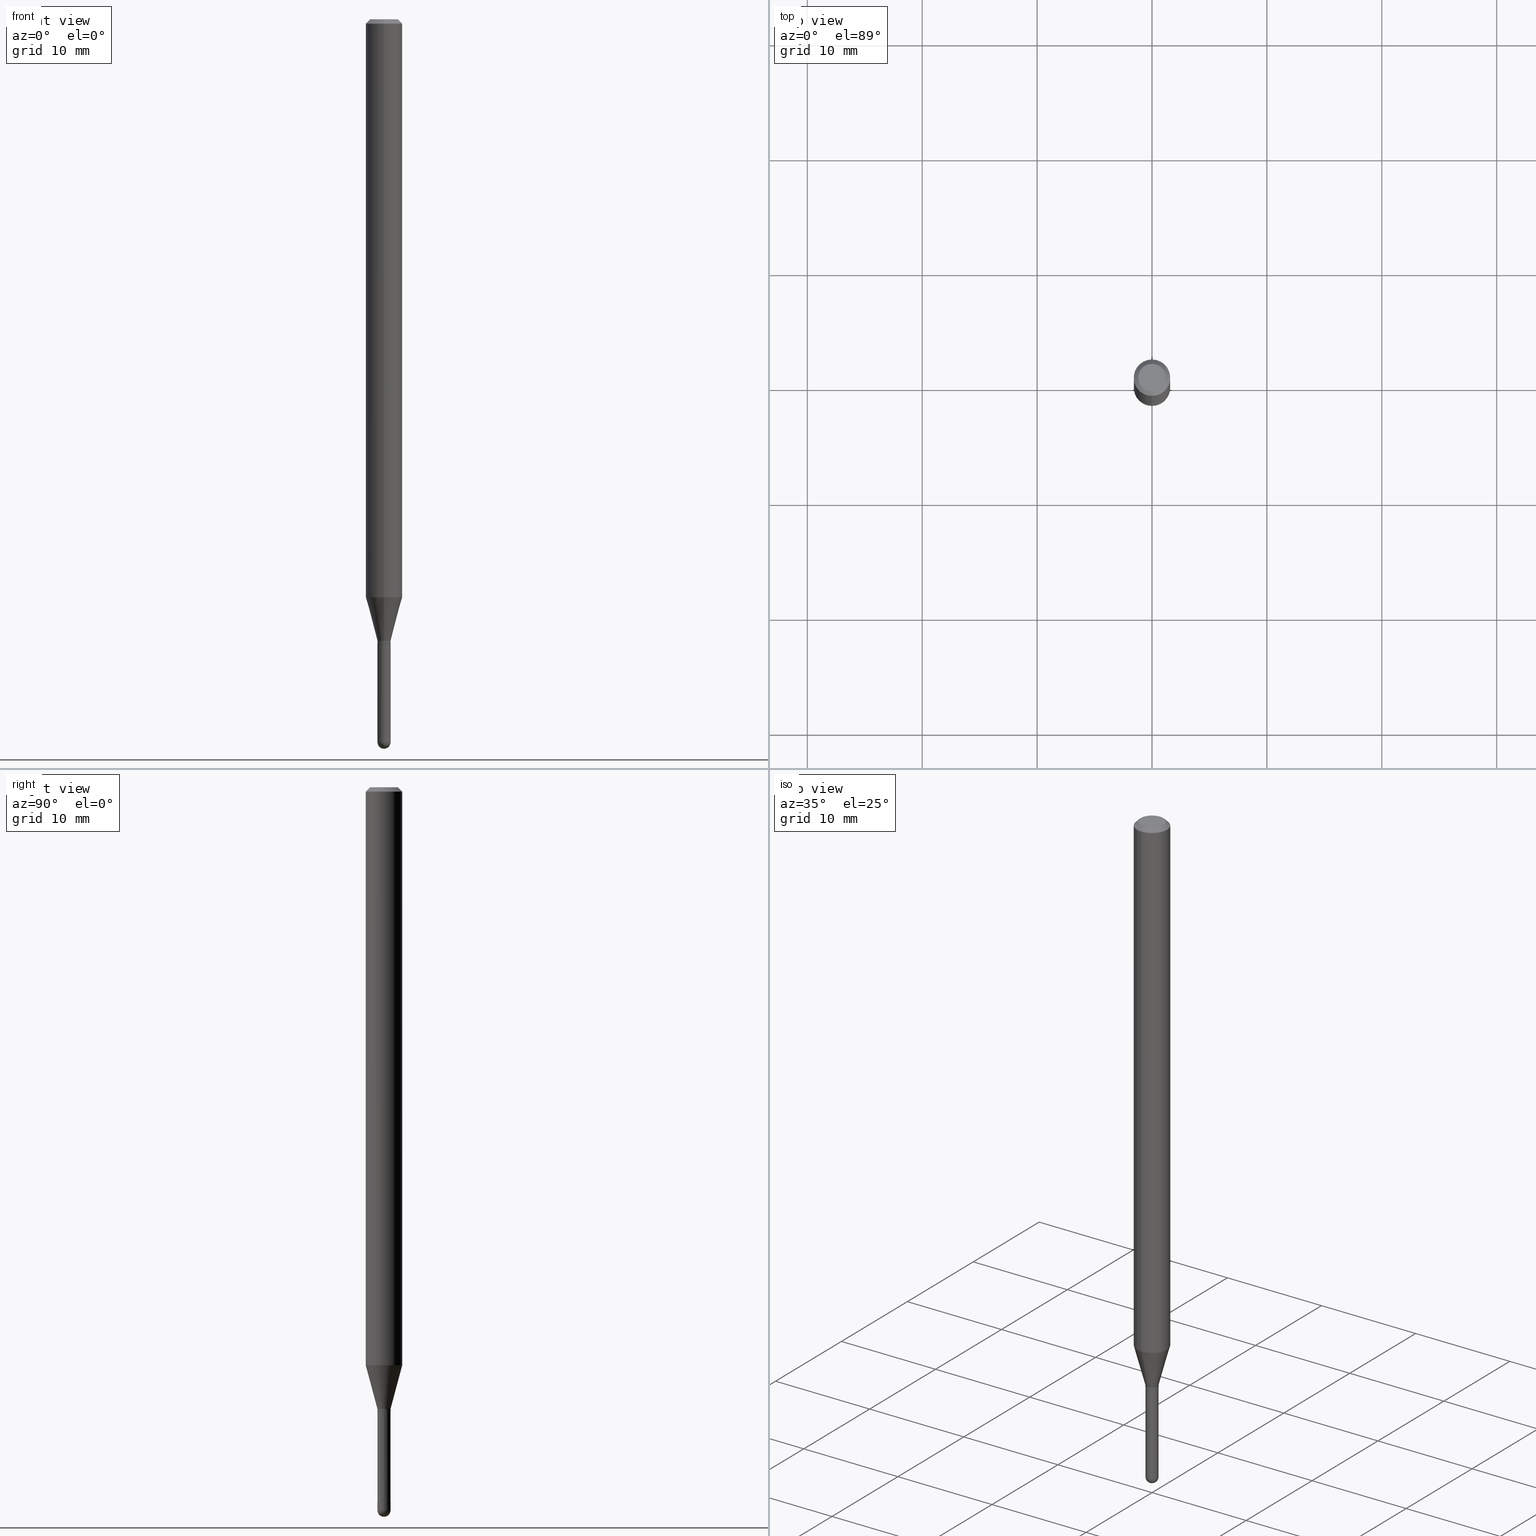
[diagram: canonical four-view strip — front | top / right | iso, engineering-drawing reading convention]
A machine part, canonical four-view strip (front | top / right | iso — engineering-drawing reading convention). The complete STEP part file that produces these views, byte-faithful:
ISO-10303-21;
HEADER;
FILE_DESCRIPTION (( 'STEP AP203' ),
    '1' );
FILE_NAME ('00987.STEP',
    '2024-03-07T19:30:09',
    ( '' ),
    ( '' ),
    'SwSTEP 2.0',
    'SolidWorks 2023',
    '' );
FILE_SCHEMA (( 'CONFIG_CONTROL_DESIGN' ));
ENDSEC;

DATA;
#1 = DIRECTION ( 'NONE',  ( 5.024295867790934632E-15, 0.7071067811869542474, 0.7071067811861405650 ) ) ;
#2 = VERTEX_POINT ( 'NONE', #376 ) ;
#3 = DIRECTION ( 'NONE',  ( -6.982962677686265922E-15, -1.000000000000000000, 3.491535548539988804E-15 ) ) ;
#4 = ADVANCED_FACE ( 'NONE', ( #181 ), #110, .T. ) ;
#5 = ORIENTED_EDGE ( 'NONE', *, *, #43, .T. ) ;
#6 = DATE_AND_TIME ( #291, #477 ) ;
#7 = AXIS2_PLACEMENT_3D ( 'NONE', #12, #18, #60 ) ;
#8 = ORIENTED_EDGE ( 'NONE', *, *, #182, .T. ) ;
#9 = DATE_AND_TIME ( #212, #171 ) ;
#10 = EDGE_CURVE ( 'NONE', #356, #237, #53, .T. ) ;
#11 = CALENDAR_DATE ( 2024, 7, 3 ) ;
#12 = CARTESIAN_POINT ( 'NONE',  ( 0.000000000000000000, 0.000000000000000000, 0.000000000000000000 ) ) ;
#13 = APPROVAL_DATE_TIME ( #483, #166 ) ;
#14 = CIRCLE ( 'NONE', #86, 0.06250000000000000000 ) ;
#15 = CIRCLE ( 'NONE', #160, 0.02249999999999999570 ) ;
#16 = DIRECTION ( 'NONE',  ( -6.982962677686265922E-15, -1.000000000000000000, 0.000000000000000000 ) ) ;
#17 = EDGE_CURVE ( 'NONE', #64, #251, #299, .T. ) ;
#18 = DIRECTION ( 'NONE',  ( -2.445468806185136597E-29, 3.491481338843145583E-15, 1.000000000000000000 ) ) ;
#19 = CARTESIAN_POINT ( 'NONE',  ( -4.364351673553434010E-16, -0.06250000000000693889, -1.980717967697244175 ) ) ;
#20 = ORIENTED_EDGE ( 'NONE', *, *, #309, .F. ) ;
#21 = CARTESIAN_POINT ( 'NONE',  ( 5.233303245236192586E-29, -7.471770065124331886E-15, -2.140000000000000124 ) ) ;
#22 = AXIS2_PLACEMENT_3D ( 'NONE', #320, #27, #36 ) ;
#23 = VECTOR ( 'NONE', #342, 39.37007874015748854 ) ;
#24 = ORIENTED_EDGE ( 'NONE', *, *, #367, .T. ) ;
#25 = ADVANCED_FACE ( 'NONE', ( #474 ), #130, .T. ) ;
#26 = PERSON ( 'UNSPECIFIED', 'UNSPECIFIED', 'UNSPECIFIED', ('UNSPECIFIED'), ('UNSPECIFIED'), ('UNSPECIFIED') ) ;
#27 = DIRECTION ( 'NONE',  ( -2.445430951756154079E-29, 3.491535548539988804E-15, 1.000000000000000000 ) ) ;
#28 = ORIENTED_EDGE ( 'NONE', *, *, #414, .F. ) ;
#29 = ORIENTED_EDGE ( 'NONE', *, *, #340, .F. ) ;
#30 = DIRECTION ( 'NONE',  ( -4.851104656540964275E-15, -0.7071067811865500152, -0.7071067811865450192 ) ) ;
#32 = EDGE_CURVE ( 'NONE', #2, #301, #336, .T. ) ;
#31 = DIRECTION ( 'NONE',  ( 2.445430951756154079E-29, -3.491535548539988804E-15, -1.000000000000000000 ) ) ;
#33 = ORIENTED_EDGE ( 'NONE', *, *, #262, .F. ) ;
#34 = CARTESIAN_POINT ( 'NONE',  ( 0.000000000000000000, 0.000000000000000000, 0.000000000000000000 ) ) ;
#35 = DIRECTION ( 'NONE',  ( -6.982962677686265922E-15, -1.000000000000000000, 4.370956789862821150E-15 ) ) ;
#36 = DIRECTION ( 'NONE',  ( -6.982962677686265922E-15, -1.000000000000000000, 0.000000000000000000 ) ) ;
#37 = ORIENTED_EDGE ( 'NONE', *, *, #132, .T. ) ;
#38 = CARTESIAN_POINT ( 'NONE',  ( 2.166100288396427880E-46, -3.092713025983241259E-32, -8.857744631231038417E-18 ) ) ;
#39 = CARTESIAN_POINT ( 'NONE',  ( 3.668146427634232888E-31, -5.237303322809986509E-17, -0.01500000000000000812 ) ) ;
#40 = DIRECTION ( 'NONE',  ( -2.445430951756154079E-29, 3.491535548539988804E-15, 1.000000000000000000 ) ) ;
#41 = DIRECTION ( 'NONE',  ( -1.000000000000000000, 6.982962677686265922E-15, -4.883557194083111780E-29 ) ) ;
#42 = CLOSED_SHELL ( 'NONE', ( #438, #232, #242, #51, #25, #381, #293, #224, #502, #432, #196, #334 ) ) ;
#43 = EDGE_CURVE ( 'NONE', #412, #111, #82, .T. ) ;
#44 = CARTESIAN_POINT ( 'NONE',  ( 6.058648967323676636E-29, -8.650145016983893338E-15, -2.477500000000000036 ) ) ;
#45 = FACE_OUTER_BOUND ( 'NONE', #386, .T. ) ;
#46 = APPLICATION_PROTOCOL_DEFINITION ( 'international standard', 'config_control_design', 1994, #369 ) ;
#47 = CARTESIAN_POINT ( 'NONE',  ( -3.773273898774340269E-16, -0.04749999999999999362, 1.569901939244184060E-16 ) ) ;
#48 = CARTESIAN_POINT ( 'NONE',  ( 0.000000000000000000, 0.000000000000000000, 0.000000000000000000 ) ) ;
#49 = DESIGN_CONTEXT ( 'detailed design', #369, 'design' ) ;
#50 =( CONVERSION_BASED_UNIT ( 'INCH', #133 ) LENGTH_UNIT ( ) NAMED_UNIT ( #73 ) );
#51 = ADVANCED_FACE ( 'NONE', ( #114 ), #254, .T. ) ;
#52 = PERSON_AND_ORGANIZATION ( #26, #454 ) ;
#53 = CIRCLE ( 'NONE', #445, 0.06250000000000000000 ) ;
#54 = APPROVAL_PERSON_ORGANIZATION ( #368, #166, #478 ) ;
#55 = APPROVAL_STATUS ( 'not_yet_approved' ) ;
#56 = CARTESIAN_POINT ( 'NONE',  ( 6.056724843173022591E-29, -8.652900472281975573E-15, -2.477500000000000036 ) ) ;
#57 = PERSON_AND_ORGANIZATION_ROLE ( 'design_owner' ) ;
#58 = MANIFOLD_SOLID_BREP ( 'Body-Move/Copy2[2]', #42 ) ;
#59 = VERTEX_POINT ( 'NONE', #434 ) ;
#60 = DIRECTION ( 'NONE',  ( 1.000000000000000000, -6.982962677686266711E-15, 4.876176775795935793E-29 ) ) ;
#61 = AXIS2_PLACEMENT_3D ( 'NONE', #276, #77, #165 ) ;
#62 = CC_DESIGN_APPROVAL ( #458, ( #484 ) ) ;
#63 = EDGE_CURVE ( 'NONE', #501, #188, #496, .T. ) ;
#64 = VERTEX_POINT ( 'NONE', #47 ) ;
#65 = ORIENTED_EDGE ( 'NONE', *, *, #346, .F. ) ;
#66 = CC_DESIGN_DATE_AND_TIME_ASSIGNMENT ( #6, #441, ( #253 ) ) ;
#67 = AXIS2_PLACEMENT_3D ( 'NONE', #195, #311, #461 ) ;
#68 = VECTOR ( 'NONE', #284, 39.37007874015748143 ) ;
#69 = VERTEX_POINT ( 'NONE', #162 ) ;
#70 = CARTESIAN_POINT ( 'NONE',  ( 5.233222236758168989E-29, -7.471886073875575741E-15, -2.139999999999999680 ) ) ;
#71 = EDGE_LOOP ( 'NONE', ( #273, #193, #455, #228 ) ) ;
#72 = DIRECTION ( 'NONE',  ( -6.982962677686265922E-15, -1.000000000000000000, 3.491535548539988804E-15 ) ) ;
#73 = DIMENSIONAL_EXPONENTS ( 1.000000000000000000, 0.000000000000000000, 0.000000000000000000, 0.000000000000000000, 0.000000000000000000, 0.000000000000000000, 0.000000000000000000 ) ;
#74 = DIRECTION ( 'NONE',  ( -2.445468806185136597E-29, 3.491481338843145583E-15, 1.000000000000000000 ) ) ;
#75 = ORIENTED_EDGE ( 'NONE', *, *, #475, .T. ) ;
#76 = CARTESIAN_POINT ( 'NONE',  ( 6.058648967323676636E-29, -8.650145016983893338E-15, -2.477500000000000036 ) ) ;
#77 = DIRECTION ( 'NONE',  ( -2.445468806185136597E-29, 3.491481338843145583E-15, 1.000000000000000000 ) ) ;
#78 = CIRCLE ( 'NONE', #109, 0.02250000000000019693 ) ;
#79 = ORIENTED_EDGE ( 'NONE', *, *, #302, .F. ) ;
#80 = PLANE ( 'NONE',  #240 ) ;
#81 = CARTESIAN_POINT ( 'NONE',  ( 6.056724843173022591E-29, -8.652900472281975573E-15, -2.477500000000000036 ) ) ;
#82 = LINE ( 'NONE', #315, #390 ) ;
#83 = EDGE_LOOP ( 'NONE', ( #24, #5, #366, #305 ) ) ;
#84 = EDGE_CURVE ( 'NONE', #237, #356, #383, .T. ) ;
#85 = CARTESIAN_POINT ( 'NONE',  ( 4.364351673553919652E-16, 0.06249999999999995143, -0.01500000000000022669 ) ) ;
#86 = AXIS2_PLACEMENT_3D ( 'NONE', #480, #283, #129 ) ;
#87 = ORIENTED_EDGE ( 'NONE', *, *, #275, .F. ) ;
#88 = LOCAL_TIME ( 14, 30, 9.000000000000000000, #481 ) ;
#89 = ADVANCED_BREP_SHAPE_REPRESENTATION ( '00987', ( #236, #58, #337 ), #279 ) ;
#90 = DIRECTION ( 'NONE',  ( -2.445430951756154079E-29, 3.491535548539988804E-15, 1.000000000000000000 ) ) ;
#91 = LINE ( 'NONE', #435, #192 ) ;
#92 = ORIENTED_EDGE ( 'NONE', *, *, #158, .T. ) ;
#93 = EDGE_CURVE ( 'NONE', #226, #69, #108, .T. ) ;
#94 = COORDINATED_UNIVERSAL_TIME_OFFSET ( 5, 0, .BEHIND. ) ;
#95 = ORIENTED_EDGE ( 'NONE', *, *, #463, .F. ) ;
#96 = AXIS2_PLACEMENT_3D ( 'NONE', #459, #74, #468 ) ;
#97 = AXIS2_PLACEMENT_3D ( 'NONE', #265, #298, #451 ) ;
#98 = FACE_OUTER_BOUND ( 'NONE', #71, .T. ) ;
#99 = DIRECTION ( 'NONE',  ( 0.000000000000000000, 0.000000000000000000, 1.000000000000000000 ) ) ;
#100 = ADVANCED_FACE ( 'NONE', ( #500 ), #151, .F. ) ;
#101 = AXIS2_PLACEMENT_3D ( 'NONE', #393, #41, #400 ) ;
#102 = LINE ( 'NONE', #225, #23 ) ;
#103 = APPROVAL_PERSON_ORGANIZATION ( #444, #177, #214 ) ;
#104 = APPROVAL_DATE_TIME ( #175, #177 ) ;
#105 = EDGE_CURVE ( 'NONE', #466, #303, #119, .T. ) ;
#106 = ORIENTED_EDGE ( 'NONE', *, *, #105, .T. ) ;
#107 = ORIENTED_EDGE ( 'NONE', *, *, #485, .F. ) ;
#108 = CIRCLE ( 'NONE', #437, 0.02249999999999999570 ) ;
#109 = AXIS2_PLACEMENT_3D ( 'NONE', #343, #377, #230 ) ;
#110 = SPHERICAL_SURFACE ( 'NONE', #101, 0.02250000000000005121 ) ;
#111 = VERTEX_POINT ( 'NONE', #504 ) ;
#112 = FACE_OUTER_BOUND ( 'NONE', #271, .T. ) ;
#113 = LINE ( 'NONE', #399, #429 ) ;
#114 = FACE_OUTER_BOUND ( 'NONE', #211, .T. ) ;
#115 = DIRECTION ( 'NONE',  ( 6.982962677686265922E-15, 1.000000000000000000, -3.483106191921935554E-15 ) ) ;
#116 = VERTEX_POINT ( 'NONE', #118 ) ;
#117 = CARTESIAN_POINT ( 'NONE',  ( 0.02249999999999999917, -7.628886725372273518E-15, -2.140000000000000124 ) ) ;
#118 = CARTESIAN_POINT ( 'NONE',  ( -1.571166602478906026E-16, -0.02250000000000774297, -2.139500000000000401 ) ) ;
#119 = CIRCLE ( 'NONE', #510, 0.02249999999999999570 ) ;
#120 = LINE ( 'NONE', #508, #137 ) ;
#121 = ORIENTED_EDGE ( 'NONE', *, *, #417, .T. ) ;
#122 = DIRECTION ( 'NONE',  ( 2.445430951756153799E-29, -3.491535548539988804E-15, -1.000000000000000000 ) ) ;
#123 = DIRECTION ( 'NONE',  ( 6.982962677686265922E-15, 1.000000000000000000, 0.000000000000000000 ) ) ;
#124 = ADVANCED_FACE ( 'NONE', ( #467 ), #246, .T. ) ;
#125 = PRODUCT ( '00987', '00987', '', ( #207 ) ) ;
#126 = DIRECTION ( 'NONE',  ( -6.982962677686266711E-15, -1.000000000000000000, 0.000000000000000000 ) ) ;
#127 = PERSON_AND_ORGANIZATION_ROLE ( 'classification_officer' ) ;
#128 = DIRECTION ( 'NONE',  ( -6.982962677686266711E-15, -1.000000000000000000, 3.491535548539988804E-15 ) ) ;
#129 = DIRECTION ( 'NONE',  ( -6.982962677686265922E-15, -1.000000000000000000, 3.483106191921935554E-15 ) ) ;
#130 = CONICAL_SURFACE ( 'NONE', #278, 0.02249999999999964875, 0.2617993877991509621 ) ;
#131 = CIRCLE ( 'NONE', #180, 0.02249999999999964875 ) ;
#132 = EDGE_CURVE ( 'NONE', #2, #412, #431, .T. ) ;
#133 = LENGTH_MEASURE_WITH_UNIT ( LENGTH_MEASURE( 0.02539999999999999897 ), #321 );
#134 = CARTESIAN_POINT ( 'NONE',  ( 6.112709953387515030E-29, -8.730081074756904482E-15, -2.500000000000000000 ) ) ;
#135 = EDGE_LOOP ( 'NONE', ( #28, #482, #505, #79 ) ) ;
#136 = PERSON_AND_ORGANIZATION_ROLE ( 'creator' ) ;
#137 = VECTOR ( 'NONE', #425, 39.37007874015748854 ) ;
#138 = PERSON_AND_ORGANIZATION_ROLE ( 'creator' ) ;
#139 = VECTOR ( 'NONE', #1, 39.37007874015748854 ) ;
#140 = DIRECTION ( 'NONE',  ( -2.445430951756154079E-29, 3.491535548539988804E-15, 1.000000000000000000 ) ) ;
#141 = PRODUCT_RELATED_PRODUCT_CATEGORY ( 'detail', '', ( #125 ) ) ;
#142 = VERTEX_POINT ( 'NONE', #159 ) ;
#143 = AXIS2_PLACEMENT_3D ( 'NONE', #355, #31, #115 ) ;
#144 = AXIS2_PLACEMENT_3D ( 'NONE', #21, #401, #314 ) ;
#145 = EDGE_CURVE ( 'NONE', #220, #111, #169, .T. ) ;
#146 = ORIENTED_EDGE ( 'NONE', *, *, #43, .F. ) ;
#147 = CARTESIAN_POINT ( 'NONE',  ( 4.843709024906387274E-29, -6.915747195846810751E-15, -1.980717967697244397 ) ) ;
#148 = ORIENTED_EDGE ( 'NONE', *, *, #32, .F. ) ;
#149 = AXIS2_PLACEMENT_3D ( 'NONE', #404, #197, #3 ) ;
#150 = CC_DESIGN_PERSON_AND_ORGANIZATION_ASSIGNMENT ( #219, #136, ( #253 ) ) ;
#151 = PLANE ( 'NONE',  #67 ) ;
#152 = ORIENTED_EDGE ( 'NONE', *, *, #408, .T. ) ;
#153 = CARTESIAN_POINT ( 'NONE',  ( 5.233222236758170110E-29, -7.471886073875577319E-15, -2.140000000000000124 ) ) ;
#154 = CARTESIAN_POINT ( 'NONE',  ( 5.233222236758168989E-29, -7.471886073875575741E-15, -2.139999999999999680 ) ) ;
#155 = DIRECTION ( 'NONE',  ( 2.445430951756154079E-29, -3.491535548539988804E-15, -1.000000000000000000 ) ) ;
#156 = EDGE_LOOP ( 'NONE', ( #29, #324, #394, #351 ) ) ;
#157 = FACE_OUTER_BOUND ( 'NONE', #204, .T. ) ;
#158 = EDGE_CURVE ( 'NONE', #251, #64, #199, .T. ) ;
#159 = CARTESIAN_POINT ( 'NONE',  ( 4.440892098501114269E-16, 0.06249999999999995143, -0.01500000000000022669 ) ) ;
#160 = AXIS2_PLACEMENT_3D ( 'NONE', #392, #357, #503 ) ;
#161 = FACE_OUTER_BOUND ( 'NONE', #387, .T. ) ;
#162 = CARTESIAN_POINT ( 'NONE',  ( -1.598721155459620894E-16, -0.02250000000000867278, -2.477500000000000036 ) ) ;
#163 = ORIENTED_EDGE ( 'NONE', *, *, #424, .T. ) ;
#164 = DIRECTION ( 'NONE',  ( -2.445430951756154079E-29, 3.491535548539988804E-15, 1.000000000000000000 ) ) ;
#165 = DIRECTION ( 'NONE',  ( 1.000000000000000000, -6.982962677686269077E-15, 0.000000000000000000 ) ) ;
#166 = APPROVAL ( #333, 'UNSPECIFIED' ) ;
#167 = APPROVAL_ROLE ( '' ) ;
#168 = DIRECTION ( 'NONE',  ( -2.445430951756154079E-29, 3.491535548539988804E-15, 1.000000000000000000 ) ) ;
#169 = CIRCLE ( 'NONE', #362, 0.02249999999999964875 ) ;
#170 = VERTEX_POINT ( 'NONE', #134 ) ;
#171 = LOCAL_TIME ( 14, 30, 9.000000000000000000, #288 ) ;
#172 =( NAMED_UNIT ( * ) PLANE_ANGLE_UNIT ( ) SI_UNIT ( $, .RADIAN. ) );
#173 = ORIENTED_EDGE ( 'NONE', *, *, #266, .T. ) ;
#174 = APPLICATION_CONTEXT ( 'configuration controlled 3d designs of mechanical parts and assemblies' ) ;
#175 = DATE_AND_TIME ( #11, #185 ) ;
#176 = CARTESIAN_POINT ( 'NONE',  ( 5.233222236758168989E-29, -7.471886073875575741E-15, -2.139999999999999680 ) ) ;
#177 = APPROVAL ( #55, 'UNSPECIFIED' ) ;
#178 = AXIS2_PLACEMENT_3D ( 'NONE', #176, #140, #16 ) ;
#179 = DIRECTION ( 'NONE',  ( 1.000000000000000000, -6.982962677686265922E-15, 4.883557194083112340E-29 ) ) ;
#180 = AXIS2_PLACEMENT_3D ( 'NONE', #227, #487, #382 ) ;
#181 = FACE_OUTER_BOUND ( 'NONE', #443, .T. ) ;
#182 = EDGE_CURVE ( 'NONE', #116, #220, #442, .T. ) ;
#183 = EDGE_LOOP ( 'NONE', ( #95, #260, #509, #344 ) ) ;
#184 = VECTOR ( 'NONE', #330, 39.37007874015748143 ) ;
#185 = LOCAL_TIME ( 14, 30, 9.000000000000000000, #374 ) ;
#186 = EDGE_LOOP ( 'NONE', ( #416, #460, #268, #20 ) ) ;
#187 = CARTESIAN_POINT ( 'NONE',  ( 4.440892098501108353E-16, 0.06249999999999306804, -1.980717967697244841 ) ) ;
#188 = VERTEX_POINT ( 'NONE', #446 ) ;
#189 = CC_DESIGN_PERSON_AND_ORGANIZATION_ASSIGNMENT ( #335, #57, ( #125 ) ) ;
#190 = FACE_OUTER_BOUND ( 'NONE', #135, .T. ) ;
#191 = DIRECTION ( 'NONE',  ( -2.445468806185136597E-29, 3.491481338843145583E-15, 1.000000000000000000 ) ) ;
#192 = VECTOR ( 'NONE', #405, 39.37007874015748143 ) ;
#193 = ORIENTED_EDGE ( 'NONE', *, *, #32, .T. ) ;
#194 = DIRECTION ( 'NONE',  ( -1.000000000000000000, 7.105427357601001070E-15, -4.926315508542082329E-29 ) ) ;
#195 = CARTESIAN_POINT ( 'NONE',  ( 1.571166602479933025E-16, 0.02249999999999252945, -2.140000000000000124 ) ) ;
#196 = ADVANCED_FACE ( 'NONE', ( #98 ), #239, .T. ) ;
#197 = DIRECTION ( 'NONE',  ( -2.445430951756154079E-29, 3.491535548539988804E-15, 1.000000000000000000 ) ) ;
#198 = LINE ( 'NONE', #465, #488 ) ;
#199 = CIRCLE ( 'NONE', #453, 0.04749999999999999362 ) ;
#200 = DIRECTION ( 'NONE',  ( -2.445430951756154079E-29, 3.491535548539988804E-15, 1.000000000000000000 ) ) ;
#201 = SECURITY_CLASSIFICATION ( '', '', #325 ) ;
#202 = ORIENTED_EDGE ( 'NONE', *, *, #323, .F. ) ;
#203 = DIRECTION ( 'NONE',  ( -2.445468806185136877E-29, 3.491481338843145188E-15, 1.000000000000000000 ) ) ;
#204 = EDGE_LOOP ( 'NONE', ( #92, #436 ) ) ;
#205 = APPROVAL_STATUS ( 'not_yet_approved' ) ;
#206 = DIRECTION ( 'NONE',  ( -2.445468806185136597E-29, 3.491481338843145583E-15, 1.000000000000000000 ) ) ;
#207 = MECHANICAL_CONTEXT ( 'NONE', #174, 'mechanical' ) ;
#208 = DIRECTION ( 'NONE',  ( -6.982962677686265133E-15, -1.000000000000000000, 3.491535548539988410E-15 ) ) ;
#209 = CONICAL_SURFACE ( 'NONE', #259, 0.06250000000000000000, 0.7853981633974483900 ) ;
#210 = VECTOR ( 'NONE', #30, 39.37007874015748143 ) ;
#211 = EDGE_LOOP ( 'NONE', ( #327, #456, #218, #202 ) ) ;
#212 = CALENDAR_DATE ( 2024, 7, 3 ) ;
#213 = DIRECTION ( 'NONE',  ( 4.937700262164548042E-15, 0.7071067811865451302, -0.7071067811865499042 ) ) ;
#214 = APPROVAL_ROLE ( '' ) ;
#215 = CC_DESIGN_PERSON_AND_ORGANIZATION_ASSIGNMENT ( #263, #138, ( #484 ) ) ;
#216 = CARTESIAN_POINT ( 'NONE',  ( -1.571166602478864611E-16, -0.02250000000000708378, -2.129999999999999893 ) ) ;
#217 = DIRECTION ( 'NONE',  ( -2.445468806185136877E-29, 3.491481338843145188E-15, 1.000000000000000000 ) ) ;
#218 = ORIENTED_EDGE ( 'NONE', *, *, #452, .F. ) ;
#219 = PERSON_AND_ORGANIZATION ( #26, #454 ) ;
#220 = VERTEX_POINT ( 'NONE', #216 ) ;
#221 = AXIS2_PLACEMENT_3D ( 'NONE', #38, #407, #128 ) ;
#222 = AXIS2_PLACEMENT_3D ( 'NONE', #238, #164, #310 ) ;
#223 = EDGE_LOOP ( 'NONE', ( #339, #380, #449, #297, #106 ) ) ;
#224 = ADVANCED_FACE ( 'NONE', ( #397 ), #402, .T. ) ;
#225 = CARTESIAN_POINT ( 'NONE',  ( -1.536251789090455247E-16, -0.02200000000000746844, -2.139999999999999680 ) ) ;
#226 = VERTEX_POINT ( 'NONE', #312 ) ;
#227 = CARTESIAN_POINT ( 'NONE',  ( 5.208767927240607101E-29, -7.436970718390176776E-15, -2.129999999999999893 ) ) ;
#228 = ORIENTED_EDGE ( 'NONE', *, *, #424, .F. ) ;
#229 = AXIS2_PLACEMENT_3D ( 'NONE', #154, #427, #241 ) ;
#230 = DIRECTION ( 'NONE',  ( -6.982962677686265133E-15, -1.000000000000000000, 0.000000000000000000 ) ) ;
#231 = CC_DESIGN_APPROVAL ( #166, ( #253 ) ) ;
#232 = ADVANCED_FACE ( 'NONE', ( #428 ), #248, .T. ) ;
#233 = CYLINDRICAL_SURFACE ( 'NONE', #96, 0.02249999999999999917 ) ;
#234 = ORIENTED_EDGE ( 'NONE', *, *, #105, .F. ) ;
#235 = CYLINDRICAL_SURFACE ( 'NONE', #511, 0.02249999999999992284 ) ;
#236 = MANIFOLD_SOLID_BREP ( 'Body-Move/Copy2[1]', #329 ) ;
#237 = VERTEX_POINT ( 'NONE', #187 ) ;
#238 = CARTESIAN_POINT ( 'NONE',  ( 5.231999521282292352E-29, -7.470140306101307686E-15, -2.139500000000000401 ) ) ;
#239 = CONICAL_SURFACE ( 'NONE', #178, 0.02199999999999999872, 0.7853981633980202659 ) ;
#240 = AXIS2_PLACEMENT_3D ( 'NONE', #153, #272, #72 ) ;
#241 = DIRECTION ( 'NONE',  ( -6.982962677686265922E-15, -1.000000000000000000, 0.000000000000000000 ) ) ;
#242 = ADVANCED_FACE ( 'NONE', ( #494 ), #209, .T. ) ;
#243 = FACE_OUTER_BOUND ( 'NONE', #83, .T. ) ;
#244 = DIRECTION ( 'NONE',  ( -1.000000000000000000, 6.982962677686265922E-15, -4.883557194083111780E-29 ) ) ;
#245 = LINE ( 'NONE', #469, #68 ) ;
#246 = SPHERICAL_SURFACE ( 'NONE', #411, 0.02250000000000005121 ) ;
#247 = ORIENTED_EDGE ( 'NONE', *, *, #398, .F. ) ;
#248 = CONICAL_SURFACE ( 'NONE', #22, 0.02199999999999999872, 0.7853981633980202659 ) ;
#249 = DIRECTION ( 'NONE',  ( -2.445430951756154079E-29, 3.491535548539988804E-15, 1.000000000000000000 ) ) ;
#250 = CIRCLE ( 'NONE', #353, 0.06250000000000000000 ) ;
#251 = VERTEX_POINT ( 'NONE', #316 ) ;
#252 = CALENDAR_DATE ( 2024, 7, 3 ) ;
#253 = PRODUCT_DEFINITION ( 'UNKNOWN', '', #484, #49 ) ;
#254 = CYLINDRICAL_SURFACE ( 'NONE', #149, 0.06250000000000000000 ) ;
#255 = CYLINDRICAL_SURFACE ( 'NONE', #345, 0.02249999999999992284 ) ;
#256 = DIRECTION ( 'NONE',  ( -2.445430951756154079E-29, 3.491535548539988804E-15, 1.000000000000000000 ) ) ;
#257 = CALENDAR_DATE ( 2024, 7, 3 ) ;
#258 = CARTESIAN_POINT ( 'NONE',  ( -1.571166602479404241E-16, -0.02249999999999992284, 7.855954984214947100E-17 ) ) ;
#259 = AXIS2_PLACEMENT_3D ( 'NONE', #39, #155, #307 ) ;
#260 = ORIENTED_EDGE ( 'NONE', *, *, #158, .F. ) ;
#261 = AXIS2_PLACEMENT_3D ( 'NONE', #512, #194, #354 ) ;
#262 = EDGE_CURVE ( 'NONE', #111, #237, #198, .T. ) ;
#263 = PERSON_AND_ORGANIZATION ( #26, #454 ) ;
#264 = DIRECTION ( 'NONE',  ( 1.000000000000000000, 0.000000000000000000, 0.000000000000000000 ) ) ;
#265 = CARTESIAN_POINT ( 'NONE',  ( 5.208767927240607101E-29, -7.436970718390176776E-15, -2.129999999999999893 ) ) ;
#266 = EDGE_CURVE ( 'NONE', #220, #356, #120, .T. ) ;
#267 = CIRCLE ( 'NONE', #420, 0.02250000000000005121 ) ;
#268 = ORIENTED_EDGE ( 'NONE', *, *, #452, .T. ) ;
#269 = DIRECTION ( 'NONE',  ( -6.982962677686265922E-15, -1.000000000000000000, 3.491535548539988804E-15 ) ) ;
#270 = CC_DESIGN_DATE_AND_TIME_ASSIGNMENT ( #9, #413, ( #201 ) ) ;
#271 = EDGE_LOOP ( 'NONE', ( #87, #148 ) ) ;
#272 = DIRECTION ( 'NONE',  ( -2.445430951756153799E-29, 3.491535548539988804E-15, 1.000000000000000000 ) ) ;
#273 = ORIENTED_EDGE ( 'NONE', *, *, #132, .F. ) ;
#274 = DIRECTION ( 'NONE',  ( -6.982962677686265922E-15, -1.000000000000000000, 3.483106191921935554E-15 ) ) ;
#275 = EDGE_CURVE ( 'NONE', #301, #2, #457, .T. ) ;
#276 = CARTESIAN_POINT ( 'NONE',  ( 5.233303245236192586E-29, -7.471770065124331886E-15, -2.140000000000000124 ) ) ;
#277 = DIRECTION ( 'NONE',  ( 1.000000000000000000, -6.982962677686269866E-15, 0.000000000000000000 ) ) ;
#278 = AXIS2_PLACEMENT_3D ( 'NONE', #439, #433, #326 ) ;
#279 =( GEOMETRIC_REPRESENTATION_CONTEXT ( 3 ) GLOBAL_UNCERTAINTY_ASSIGNED_CONTEXT ( ( #286 ) ) GLOBAL_UNIT_ASSIGNED_CONTEXT ( ( #50, #172, #448 ) ) REPRESENTATION_CONTEXT ( 'NONE', 'WORKASPACE' ) );
#280 = DIRECTION ( 'NONE',  ( -2.445430951756154079E-29, 3.491535548539988804E-15, 1.000000000000000000 ) ) ;
#281 = DIRECTION ( 'NONE',  ( 6.982962677686265922E-15, 1.000000000000000000, -3.491535548539988804E-15 ) ) ;
#282 = DIRECTION ( 'NONE',  ( -6.982962677686265922E-15, -1.000000000000000000, 4.370956789862821150E-15 ) ) ;
#283 = DIRECTION ( 'NONE',  ( -2.445430951756154079E-29, 3.491535548539988804E-15, 1.000000000000000000 ) ) ;
#284 = DIRECTION ( 'NONE',  ( -2.445430951756154079E-29, 3.491535548539988804E-15, 1.000000000000000000 ) ) ;
#285 = CARTESIAN_POINT ( 'NONE',  ( 1.571166602480017334E-16, 0.02249999999999136718, -2.477500000000000036 ) ) ;
#286 = UNCERTAINTY_MEASURE_WITH_UNIT (LENGTH_MEASURE( 1.000000000000000082E-05 ), #50, 'distance_accuracy_value', 'NONE');
#287 = ADVANCED_FACE ( 'NONE', ( #161 ), #233, .T. ) ;
#288 = COORDINATED_UNIVERSAL_TIME_OFFSET ( 5, 0, .BEHIND. ) ;
#289 = CC_DESIGN_SECURITY_CLASSIFICATION ( #201, ( #484 ) ) ;
#290 = APPLICATION_PROTOCOL_DEFINITION ( 'international standard', 'config_control_design', 1994, #174 ) ;
#291 = CALENDAR_DATE ( 2024, 7, 3 ) ;
#292 = CARTESIAN_POINT ( 'NONE',  ( 2.166100288396427880E-46, -3.092713025983241259E-32, -8.857744631231038417E-18 ) ) ;
#293 = ADVANCED_FACE ( 'NONE', ( #190 ), #462, .T. ) ;
#294 = ORIENTED_EDGE ( 'NONE', *, *, #10, .F. ) ;
#295 = PERSON_AND_ORGANIZATION_ROLE ( 'design_supplier' ) ;
#296 = CIRCLE ( 'NONE', #144, 0.02249999999999999917 ) ;
#297 = ORIENTED_EDGE ( 'NONE', *, *, #417, .F. ) ;
#298 = DIRECTION ( 'NONE',  ( -2.445430951756154079E-29, 3.491535548539988804E-15, 1.000000000000000000 ) ) ;
#299 = CIRCLE ( 'NONE', #221, 0.04749999999999999362 ) ;
#300 = CC_DESIGN_APPROVAL ( #177, ( #201 ) ) ;
#301 = VERTEX_POINT ( 'NONE', #471 ) ;
#302 = EDGE_CURVE ( 'NONE', #142, #59, #14, .T. ) ;
#303 = VERTEX_POINT ( 'NONE', #285 ) ;
#304 = PRODUCT_DEFINITION_SHAPE ( 'NONE', 'NONE',  #253 ) ;
#305 = ORIENTED_EDGE ( 'NONE', *, *, #182, .F. ) ;
#306 = AXIS2_PLACEMENT_3D ( 'NONE', #497, #280, #269 ) ;
#307 = DIRECTION ( 'NONE',  ( 6.982962677686265922E-15, 1.000000000000000000, -3.483106191921935554E-15 ) ) ;
#308 = EDGE_LOOP ( 'NONE', ( #406, #152 ) ) ;
#309 = EDGE_CURVE ( 'NONE', #251, #142, #440, .T. ) ;
#310 = DIRECTION ( 'NONE',  ( -6.982962677686265133E-15, -1.000000000000000000, 0.000000000000000000 ) ) ;
#311 = DIRECTION ( 'NONE',  ( 2.438088387897960049E-29, -3.491481338843145188E-15, -1.000000000000000000 ) ) ;
#312 = CARTESIAN_POINT ( 'NONE',  ( -0.02249999999999999570, -7.901085425508090322E-15, -2.477500000000000036 ) ) ;
#313 = EDGE_LOOP ( 'NONE', ( #492, #486, #294, #498 ) ) ;
#314 = DIRECTION ( 'NONE',  ( 1.000000000000000000, -6.982962677686269077E-15, 0.000000000000000000 ) ) ;
#315 = CARTESIAN_POINT ( 'NONE',  ( 1.598721155460219689E-16, 0.02249999999999992284, -7.855954984214947100E-17 ) ) ;
#316 = CARTESIAN_POINT ( 'NONE',  ( 3.840629472727447874E-16, 0.04749999999999999362, -1.747056831868805136E-16 ) ) ;
#317 = CARTESIAN_POINT ( 'NONE',  ( 3.316907271900976096E-16, 0.04749999999999999362, -1.702768108712649806E-16 ) ) ;
#318 = AXIS2_PLACEMENT_3D ( 'NONE', #70, #385, #348 ) ;
#319 = CARTESIAN_POINT ( 'NONE',  ( 4.843709024906387274E-29, -6.915747195846810751E-15, -1.980717967697244397 ) ) ;
#320 = CARTESIAN_POINT ( 'NONE',  ( 5.233222236758168989E-29, -7.471886073875575741E-15, -2.139999999999999680 ) ) ;
#321 =( LENGTH_UNIT ( ) NAMED_UNIT ( * ) SI_UNIT ( $, .METRE. ) );
#322 = CARTESIAN_POINT ( 'NONE',  ( 5.208767927240607101E-29, -7.436970718390176776E-15, -2.129999999999999893 ) ) ;
#323 = EDGE_CURVE ( 'NONE', #356, #59, #91, .T. ) ;
#324 = ORIENTED_EDGE ( 'NONE', *, *, #485, .T. ) ;
#325 = SECURITY_CLASSIFICATION_LEVEL ( 'unclassified' ) ;
#326 = DIRECTION ( 'NONE',  ( -6.982962677686266711E-15, -1.000000000000000000, 0.000000000000000000 ) ) ;
#327 = ORIENTED_EDGE ( 'NONE', *, *, #10, .T. ) ;
#328 = PERSON_AND_ORGANIZATION ( #26, #454 ) ;
#329 = CLOSED_SHELL ( 'NONE', ( #350, #124, #100, #4, #287 ) ) ;
#330 = DIRECTION ( 'NONE',  ( -2.445430951756154079E-29, 3.491535548539988804E-15, 1.000000000000000000 ) ) ;
#331 = CIRCLE ( 'NONE', #222, 0.02250000000000019693 ) ;
#332 = EDGE_LOOP ( 'NONE', ( #349, #37, #372, #347 ) ) ;
#333 = APPROVAL_STATUS ( 'not_yet_approved' ) ;
#334 = ADVANCED_FACE ( 'NONE', ( #45 ), #255, .T. ) ;
#335 = PERSON_AND_ORGANIZATION ( #26, #454 ) ;
#336 = CIRCLE ( 'NONE', #229, 0.02199999999999999872 ) ;
#337 = AXIS2_PLACEMENT_3D ( 'NONE', #476, #99, #264 ) ;
#338 = DIRECTION ( 'NONE',  ( 6.982962677686265922E-15, 1.000000000000000000, 0.000000000000000000 ) ) ;
#339 = ORIENTED_EDGE ( 'NONE', *, *, #493, .T. ) ;
#340 = EDGE_CURVE ( 'NONE', #170, #303, #267, .T. ) ;
#341 = ORIENTED_EDGE ( 'NONE', *, *, #93, .T. ) ;
#342 = DIRECTION ( 'NONE',  ( -4.937700262167370586E-15, -0.7071067811869493624, 0.7071067811861454500 ) ) ;
#343 = CARTESIAN_POINT ( 'NONE',  ( 5.231999521282292352E-29, -7.470140306101307686E-15, -2.139500000000000401 ) ) ;
#344 = ORIENTED_EDGE ( 'NONE', *, *, #302, .T. ) ;
#345 = AXIS2_PLACEMENT_3D ( 'NONE', #48, #256, #208 ) ;
#346 = EDGE_CURVE ( 'NONE', #226, #188, #378, .T. ) ;
#347 = ORIENTED_EDGE ( 'NONE', *, *, #389, .F. ) ;
#348 = DIRECTION ( 'NONE',  ( -6.982962677686265922E-15, -1.000000000000000000, 0.000000000000000000 ) ) ;
#349 = ORIENTED_EDGE ( 'NONE', *, *, #275, .T. ) ;
#350 = ADVANCED_FACE ( 'NONE', ( #375 ), #418, .T. ) ;
#351 = ORIENTED_EDGE ( 'NONE', *, *, #493, .F. ) ;
#352 = VECTOR ( 'NONE', #213, 39.37007874015748143 ) ;
#353 = AXIS2_PLACEMENT_3D ( 'NONE', #506, #359, #274 ) ;
#354 = DIRECTION ( 'NONE',  ( -7.105427357600999492E-15, -1.000000000000000000, 0.000000000000000000 ) ) ;
#355 = CARTESIAN_POINT ( 'NONE',  ( 3.668146427634232888E-31, -5.237303322809986509E-17, -0.01500000000000000812 ) ) ;
#356 = VERTEX_POINT ( 'NONE', #19 ) ;
#357 = DIRECTION ( 'NONE',  ( -2.445468806185136597E-29, 3.491481338843145583E-15, 1.000000000000000000 ) ) ;
#358 = CARTESIAN_POINT ( 'NONE',  ( 6.058648967323676636E-29, -8.650145016983893338E-15, -2.477500000000000036 ) ) ;
#359 = DIRECTION ( 'NONE',  ( -2.445430951756154079E-29, 3.491535548539988804E-15, 1.000000000000000000 ) ) ;
#360 = DIRECTION ( 'NONE',  ( 1.839019923739605048E-15, 0.2588190451025256245, 0.9659258262890669799 ) ) ;
#361 = CARTESIAN_POINT ( 'NONE',  ( -4.287811248607203282E-16, -0.06250000000000005551, -0.01499999999999979128 ) ) ;
#362 = AXIS2_PLACEMENT_3D ( 'NONE', #322, #470, #126 ) ;
#363 = APPROVAL_PERSON_ORGANIZATION ( #328, #458, #167 ) ;
#364 = CC_DESIGN_PERSON_AND_ORGANIZATION_ASSIGNMENT ( #473, #127, ( #201 ) ) ;
#365 = DIRECTION ( 'NONE',  ( 1.000000000000000000, -6.982962677686269866E-15, 0.000000000000000000 ) ) ;
#366 = ORIENTED_EDGE ( 'NONE', *, *, #145, .F. ) ;
#367 = EDGE_CURVE ( 'NONE', #116, #412, #78, .T. ) ;
#368 = PERSON_AND_ORGANIZATION ( #26, #454 ) ;
#369 = APPLICATION_CONTEXT ( 'configuration controlled 3d designs of mechanical parts and assemblies' ) ;
#370 = AXIS2_PLACEMENT_3D ( 'NONE', #319, #200, #35 ) ;
#371 = AXIS2_PLACEMENT_3D ( 'NONE', #317, #122, #281 ) ;
#372 = ORIENTED_EDGE ( 'NONE', *, *, #367, .F. ) ;
#373 = DATE_AND_TIME ( #257, #422 ) ;
#374 = COORDINATED_UNIVERSAL_TIME_OFFSET ( 5, 0, .BEHIND. ) ;
#375 = FACE_OUTER_BOUND ( 'NONE', #223, .T. ) ;
#376 = CARTESIAN_POINT ( 'NONE',  ( 1.580957587066752608E-16, 0.02199999999999252900, -2.139999999999999680 ) ) ;
#377 = DIRECTION ( 'NONE',  ( -2.445430951756154079E-29, 3.491535548539988804E-15, 1.000000000000000000 ) ) ;
#378 = LINE ( 'NONE', #491, #391 ) ;
#379 = SHAPE_DEFINITION_REPRESENTATION ( #304, #89 ) ;
#380 = ORIENTED_EDGE ( 'NONE', *, *, #346, .T. ) ;
#381 = ADVANCED_FACE ( 'NONE', ( #423 ), #403, .T. ) ;
#382 = DIRECTION ( 'NONE',  ( -6.982962677686266711E-15, -1.000000000000000000, 0.000000000000000000 ) ) ;
#383 = CIRCLE ( 'NONE', #370, 0.06250000000000000000 ) ;
#384 = AXIS2_PLACEMENT_3D ( 'NONE', #76, #191, #277 ) ;
#385 = DIRECTION ( 'NONE',  ( -2.445430951756154079E-29, 3.491535548539988804E-15, 1.000000000000000000 ) ) ;
#386 = EDGE_LOOP ( 'NONE', ( #146, #163, #8, #247 ) ) ;
#387 = EDGE_LOOP ( 'NONE', ( #65, #341, #75, #121, #490 ) ) ;
#388 = DIRECTION ( 'NONE',  ( -6.982962677686265133E-15, -1.000000000000000000, 3.491535548539988410E-15 ) ) ;
#389 = EDGE_CURVE ( 'NONE', #301, #116, #102, .T. ) ;
#390 = VECTOR ( 'NONE', #90, 39.37007874015748143 ) ;
#391 = VECTOR ( 'NONE', #217, 39.37007874015748143 ) ;
#392 = CARTESIAN_POINT ( 'NONE',  ( 6.058648967323676636E-29, -8.650145016983893338E-15, -2.477500000000000036 ) ) ;
#393 = CARTESIAN_POINT ( 'NONE',  ( 6.056724843173022591E-29, -8.652900472281975573E-15, -2.477500000000000036 ) ) ;
#394 = ORIENTED_EDGE ( 'NONE', *, *, #93, .F. ) ;
#395 = LINE ( 'NONE', #361, #210 ) ;
#396 = DIRECTION ( 'NONE',  ( -2.445468806185136597E-29, 3.491481338843145583E-15, 1.000000000000000000 ) ) ;
#397 = FACE_OUTER_BOUND ( 'NONE', #183, .T. ) ;
#398 = EDGE_CURVE ( 'NONE', #111, #220, #131, .T. ) ;
#399 = CARTESIAN_POINT ( 'NONE',  ( 0.02249999999999999917, -1.571166602479409911E-16, 1.097139774554085483E-30 ) ) ;
#400 = DIRECTION ( 'NONE',  ( 6.982962677686265922E-15, 1.000000000000000000, 0.000000000000000000 ) ) ;
#401 = DIRECTION ( 'NONE',  ( -2.445468806185136597E-29, 3.491481338843145583E-15, 1.000000000000000000 ) ) ;
#402 = CONICAL_SURFACE ( 'NONE', #143, 0.06250000000000000000, 0.7853981633974483900 ) ;
#403 = CONICAL_SURFACE ( 'NONE', #97, 0.02249999999999964875, 0.2617993877991509621 ) ;
#404 = CARTESIAN_POINT ( 'NONE',  ( 0.000000000000000000, 0.000000000000000000, 0.000000000000000000 ) ) ;
#405 = DIRECTION ( 'NONE',  ( -2.445430951756154079E-29, 3.491535548539988804E-15, 1.000000000000000000 ) ) ;
#406 = ORIENTED_EDGE ( 'NONE', *, *, #63, .T. ) ;
#407 = DIRECTION ( 'NONE',  ( -2.445430951756154079E-29, 3.491535548539988804E-15, 1.000000000000000000 ) ) ;
#408 = EDGE_CURVE ( 'NONE', #188, #501, #296, .T. ) ;
#409 = COORDINATED_UNIVERSAL_TIME_OFFSET ( 5, 0, .BEHIND. ) ;
#410 = APPROVAL_DATE_TIME ( #373, #458 ) ;
#411 = AXIS2_PLACEMENT_3D ( 'NONE', #81, #244, #123 ) ;
#412 = VERTEX_POINT ( 'NONE', #499 ) ;
#413 = DATE_TIME_ROLE ( 'classification_date' ) ;
#414 = EDGE_CURVE ( 'NONE', #237, #142, #245, .T. ) ;
#415 = CIRCLE ( 'NONE', #261, 0.02250000000000005121 ) ;
#416 = ORIENTED_EDGE ( 'NONE', *, *, #17, .F. ) ;
#417 = EDGE_CURVE ( 'NONE', #466, #501, #113, .T. ) ;
#418 = CYLINDRICAL_SURFACE ( 'NONE', #7, 0.02249999999999999917 ) ;
#419 = ORIENTED_EDGE ( 'NONE', *, *, #84, .F. ) ;
#420 = AXIS2_PLACEMENT_3D ( 'NONE', #56, #179, #338 ) ;
#421 = ORIENTED_EDGE ( 'NONE', *, *, #475, .F. ) ;
#422 = LOCAL_TIME ( 14, 30, 9.000000000000000000, #94 ) ;
#423 = FACE_OUTER_BOUND ( 'NONE', #472, .T. ) ;
#424 = EDGE_CURVE ( 'NONE', #412, #116, #331, .T. ) ;
#425 = DIRECTION ( 'NONE',  ( -1.807323732225334872E-15, -0.2588190451025188521, 0.9659258262890687563 ) ) ;
#426 = CARTESIAN_POINT ( 'NONE',  ( 0.02249999999999999570, -8.218074201302054244E-15, -2.477500000000000036 ) ) ;
#427 = DIRECTION ( 'NONE',  ( -2.445430951756154079E-29, 3.491535548539988804E-15, 1.000000000000000000 ) ) ;
#428 = FACE_OUTER_BOUND ( 'NONE', #332, .T. ) ;
#429 = VECTOR ( 'NONE', #203, 39.37007874015748143 ) ;
#430 = PLANE ( 'NONE',  #371 ) ;
#431 = LINE ( 'NONE', #507, #139 ) ;
#432 = ADVANCED_FACE ( 'NONE', ( #112 ), #80, .F. ) ;
#433 = DIRECTION ( 'NONE',  ( -2.445430951756154079E-29, 3.491535548539988804E-15, 1.000000000000000000 ) ) ;
#434 = CARTESIAN_POINT ( 'NONE',  ( -4.364351673553912750E-16, -0.06250000000000005551, -0.01499999999999979128 ) ) ;
#435 = CARTESIAN_POINT ( 'NONE',  ( -4.364351673553916201E-16, -0.06250000000000000000, 2.182209717837493003E-16 ) ) ;
#436 = ORIENTED_EDGE ( 'NONE', *, *, #17, .T. ) ;
#437 = AXIS2_PLACEMENT_3D ( 'NONE', #44, #206, #365 ) ;
#438 = ADVANCED_FACE ( 'NONE', ( #243 ), #235, .T. ) ;
#439 = CARTESIAN_POINT ( 'NONE',  ( 5.208767927240607101E-29, -7.436970718390176776E-15, -2.129999999999999893 ) ) ;
#440 = LINE ( 'NONE', #85, #352 ) ;
#441 = DATE_TIME_ROLE ( 'creation_date' ) ;
#442 = LINE ( 'NONE', #258, #184 ) ;
#443 = EDGE_LOOP ( 'NONE', ( #107, #450, #234, #421 ) ) ;
#444 = PERSON_AND_ORGANIZATION ( #26, #454 ) ;
#445 = AXIS2_PLACEMENT_3D ( 'NONE', #147, #249, #282 ) ;
#446 = CARTESIAN_POINT ( 'NONE',  ( -0.02249999999999999917, -7.901085425508090322E-15, -2.140000000000000124 ) ) ;
#447 = CC_DESIGN_PERSON_AND_ORGANIZATION_ASSIGNMENT ( #52, #295, ( #484 ) ) ;
#448 =( NAMED_UNIT ( * ) SI_UNIT ( $, .STERADIAN. ) SOLID_ANGLE_UNIT ( ) );
#449 = ORIENTED_EDGE ( 'NONE', *, *, #63, .F. ) ;
#450 = ORIENTED_EDGE ( 'NONE', *, *, #340, .T. ) ;
#451 = DIRECTION ( 'NONE',  ( -6.982962677686266711E-15, -1.000000000000000000, 0.000000000000000000 ) ) ;
#452 = EDGE_CURVE ( 'NONE', #59, #142, #250, .T. ) ;
#453 = AXIS2_PLACEMENT_3D ( 'NONE', #292, #168, #479 ) ;
#454 = ORGANIZATION ( 'UNSPECIFIED', 'UNSPECIFIED', '' ) ;
#455 = ORIENTED_EDGE ( 'NONE', *, *, #389, .T. ) ;
#456 = ORIENTED_EDGE ( 'NONE', *, *, #414, .T. ) ;
#457 = CIRCLE ( 'NONE', #318, 0.02199999999999999872 ) ;
#458 = APPROVAL ( #205, 'UNSPECIFIED' ) ;
#459 = CARTESIAN_POINT ( 'NONE',  ( 0.000000000000000000, 0.000000000000000000, 0.000000000000000000 ) ) ;
#460 = ORIENTED_EDGE ( 'NONE', *, *, #463, .T. ) ;
#461 = DIRECTION ( 'NONE',  ( -1.000000000000000000, 6.982962677686265922E-15, -4.876176775795935793E-29 ) ) ;
#462 = CYLINDRICAL_SURFACE ( 'NONE', #306, 0.06250000000000000000 ) ;
#463 = EDGE_CURVE ( 'NONE', #64, #59, #395, .T. ) ;
#464 = DIRECTION ( 'NONE',  ( 1.000000000000000000, -6.982962677686269866E-15, 0.000000000000000000 ) ) ;
#465 = CARTESIAN_POINT ( 'NONE',  ( 1.598721155460720862E-16, 0.02249999999999221373, -2.129999999999999893 ) ) ;
#466 = VERTEX_POINT ( 'NONE', #426 ) ;
#467 = FACE_OUTER_BOUND ( 'NONE', #156, .T. ) ;
#468 = DIRECTION ( 'NONE',  ( 1.000000000000000000, -6.982962677686266711E-15, 4.876176775795935793E-29 ) ) ;
#469 = CARTESIAN_POINT ( 'NONE',  ( 4.440892098500625669E-16, 0.06250000000000000000, -2.182209717837493003E-16 ) ) ;
#470 = DIRECTION ( 'NONE',  ( -2.445430951756154079E-29, 3.491535548539988804E-15, 1.000000000000000000 ) ) ;
#471 = CARTESIAN_POINT ( 'NONE',  ( -1.536251789090455247E-16, -0.02200000000000746844, -2.139999999999999680 ) ) ;
#472 = EDGE_LOOP ( 'NONE', ( #33, #495, #173, #419 ) ) ;
#473 = PERSON_AND_ORGANIZATION ( #26, #454 ) ;
#474 = FACE_OUTER_BOUND ( 'NONE', #313, .T. ) ;
#475 = EDGE_CURVE ( 'NONE', #69, #466, #489, .T. ) ;
#476 = CARTESIAN_POINT ( 'NONE',  ( 0.000000000000000000, 0.000000000000000000, 0.000000000000000000 ) ) ;
#477 = LOCAL_TIME ( 14, 30, 9.000000000000000000, #409 ) ;
#478 = APPROVAL_ROLE ( '' ) ;
#479 = DIRECTION ( 'NONE',  ( -6.982962677686266711E-15, -1.000000000000000000, 3.491535548539988804E-15 ) ) ;
#480 = CARTESIAN_POINT ( 'NONE',  ( 3.668146427634232888E-31, -5.237303322809986509E-17, -0.01500000000000000812 ) ) ;
#481 = COORDINATED_UNIVERSAL_TIME_OFFSET ( 5, 0, .BEHIND. ) ;
#482 = ORIENTED_EDGE ( 'NONE', *, *, #84, .T. ) ;
#483 = DATE_AND_TIME ( #252, #88 ) ;
#484 = PRODUCT_DEFINITION_FORMATION_WITH_SPECIFIED_SOURCE ( 'ANY', '', #125, .NOT_KNOWN. ) ;
#485 = EDGE_CURVE ( 'NONE', #170, #69, #415, .T. ) ;
#486 = ORIENTED_EDGE ( 'NONE', *, *, #262, .T. ) ;
#487 = DIRECTION ( 'NONE',  ( -2.445430951756154079E-29, 3.491535548539988804E-15, 1.000000000000000000 ) ) ;
#488 = VECTOR ( 'NONE', #360, 39.37007874015748143 ) ;
#489 = CIRCLE ( 'NONE', #384, 0.02249999999999999570 ) ;
#490 = ORIENTED_EDGE ( 'NONE', *, *, #408, .F. ) ;
#491 = CARTESIAN_POINT ( 'NONE',  ( -0.02249999999999999917, 1.598721155460225359E-16, -1.106760395307353780E-30 ) ) ;
#492 = ORIENTED_EDGE ( 'NONE', *, *, #145, .T. ) ;
#493 = EDGE_CURVE ( 'NONE', #303, #226, #15, .T. ) ;
#494 = FACE_OUTER_BOUND ( 'NONE', #186, .T. ) ;
#495 = ORIENTED_EDGE ( 'NONE', *, *, #398, .T. ) ;
#496 = CIRCLE ( 'NONE', #61, 0.02249999999999999917 ) ;
#497 = CARTESIAN_POINT ( 'NONE',  ( 0.000000000000000000, 0.000000000000000000, 0.000000000000000000 ) ) ;
#498 = ORIENTED_EDGE ( 'NONE', *, *, #266, .F. ) ;
#499 = CARTESIAN_POINT ( 'NONE',  ( 1.598721155460756608E-16, 0.02249999999999264741, -2.139500000000000401 ) ) ;
#500 = FACE_OUTER_BOUND ( 'NONE', #308, .T. ) ;
#501 = VERTEX_POINT ( 'NONE', #117 ) ;
#502 = ADVANCED_FACE ( 'NONE', ( #157 ), #430, .F. ) ;
#503 = DIRECTION ( 'NONE',  ( 1.000000000000000000, -6.982962677686269866E-15, 0.000000000000000000 ) ) ;
#504 = CARTESIAN_POINT ( 'NONE',  ( 3.019806626980916580E-16, 0.02249999999999221373, -2.129999999999999893 ) ) ;
#505 = ORIENTED_EDGE ( 'NONE', *, *, #323, .T. ) ;
#506 = CARTESIAN_POINT ( 'NONE',  ( 3.668146427634232888E-31, -5.237303322809986509E-17, -0.01500000000000000812 ) ) ;
#507 = CARTESIAN_POINT ( 'NONE',  ( 1.563194018672743185E-16, 0.02199999999999252900, -2.139999999999999680 ) ) ;
#508 = CARTESIAN_POINT ( 'NONE',  ( -1.571166602478864611E-16, -0.02250000000000708378, -2.129999999999999893 ) ) ;
#509 = ORIENTED_EDGE ( 'NONE', *, *, #309, .T. ) ;
#510 = AXIS2_PLACEMENT_3D ( 'NONE', #358, #396, #464 ) ;
#511 = AXIS2_PLACEMENT_3D ( 'NONE', #34, #40, #388 ) ;
#512 = CARTESIAN_POINT ( 'NONE',  ( 6.056724843173022591E-29, -8.652900472281975573E-15, -2.477500000000000036 ) ) ;
ENDSEC;
END-ISO-10303-21;
